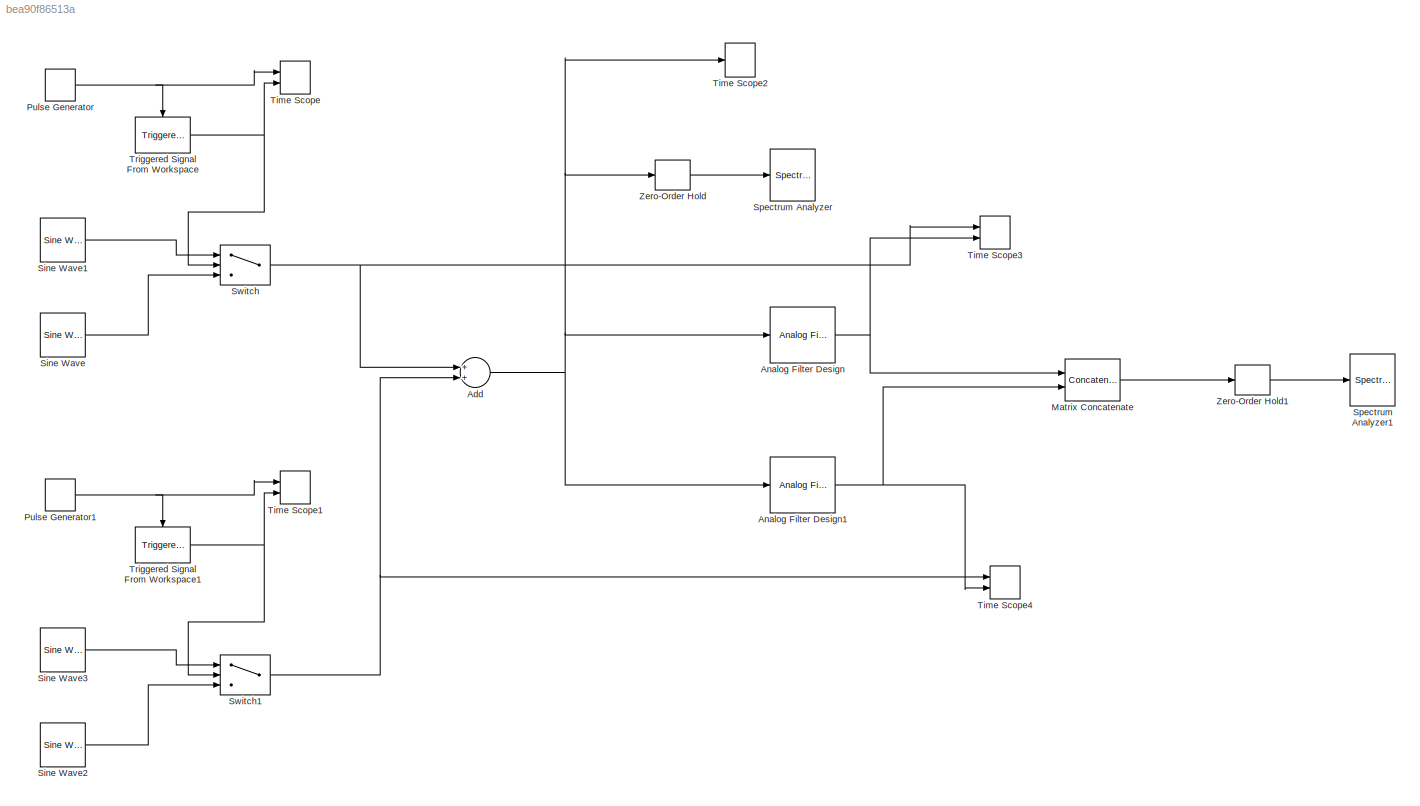
MODEL slx_bea90f86513a
KIND model
CONFIG AbsTol = auto
CONFIG FixedStep = auto
CONFIG MaxStep = auto
CONFIG MinStep = auto
CONFIG RelTol = 1e-3
CONFIG SampleTimeConstraint = Unconstrained
CONFIG Solver = ode45
CONFIG SolverMode = Auto
CONFIG SolverName = ode45
CONFIG StartTime = 0.0
CONFIG StopTime = 8
BLOCK [Sum] Add
  InputSameDT = off
  OutDataTypeStr = Inherit: Inherit via internal rule
  Ports = [2, 1]
  SaturateOnIntegerOverflow = off
BLOCK [Reference] Analog Filter Design  REF=dsparch4/Analog
Filter Design
  N = 8
  Ports = [1, 1]
  Rp = 2
  Rs = 40
  SourceBlock = dsparch4/Analog\nFilter Design
  SourceType = Analog Filter Design
  Whi = 2*pi*22
  Wlo = 2*pi*18
  filttype = Bandpass
  method = Butterworth
BLOCK [Reference] Analog Filter Design1  REF=dsparch4/Analog
Filter Design
  N = 8
  Ports = [1, 1]
  Rp = 2
  Rs = 40
  SourceBlock = dsparch4/Analog\nFilter Design
  SourceType = Analog Filter Design
  Whi = 2*pi*52
  Wlo = 2*pi*48
  filttype = Bandpass
  method = Butterworth
BLOCK [Concatenate] Matrix Concatenate
  ConcatenateDimension = 2
  Mode = Multidimensional array
  Ports = [2, 1]
BLOCK [DiscretePulseGenerator] Pulse Generator
  Amplitude = 0.5
  Period = 0.5
  Ports = [0, 1]
  PulseType = Time based
  PulseWidth = 50
BLOCK [DiscretePulseGenerator] Pulse Generator1
  Amplitude = 0.5
  Period = 0.5
  Ports = [0, 1]
  PulseType = Time based
  PulseWidth = 50
BLOCK [Reference] Sine Wave  REF=dspsrcs4/Sine Wave
  Amplitude = 0
  CompMethod = Trigonometric fcn
  Frequency = 20
  LastOutDataTypeStr = double
  OutComplex = Real
  OutDataTypeStr = double
  Phase = 0
  Ports = [0, 1]
  ResetState = Restart at time zero
  SampleMode = Discrete
  SampleTime = 0.0025
  SamplesPerFrame = 1
  SourceBlock = dspsrcs4/Sine Wave
  SourceType = Sine Wave
  TableSize = Speed
  additionalParams = off
  allowOverrides = on
  dataType = double
  fracBitsMode = Best precision
  numFracBits = 15
  udDataType = sfix(16)
  wordLen = 16
BLOCK [Reference] Sine Wave1  REF=dspsrcs4/Sine Wave
  Amplitude = 2
  CompMethod = Trigonometric fcn
  Frequency = 20
  LastOutDataTypeStr = double
  OutComplex = Real
  OutDataTypeStr = double
  Phase = 0
  Ports = [0, 1]
  ResetState = Restart at time zero
  SampleMode = Discrete
  SampleTime = 0.0025
  SamplesPerFrame = 1
  SourceBlock = dspsrcs4/Sine Wave
  SourceType = Sine Wave
  TableSize = Speed
  additionalParams = off
  allowOverrides = on
  dataType = double
  fracBitsMode = Best precision
  numFracBits = 15
  udDataType = sfix(16)
  wordLen = 16
BLOCK [Reference] Sine Wave2  REF=dspsrcs4/Sine Wave
  Amplitude = 0
  CompMethod = Trigonometric fcn
  Frequency = 50
  LastOutDataTypeStr = double
  OutComplex = Real
  OutDataTypeStr = double
  Phase = 0
  Ports = [0, 1]
  ResetState = Restart at time zero
  SampleMode = Discrete
  SampleTime = 0.0025
  SamplesPerFrame = 1
  SourceBlock = dspsrcs4/Sine Wave
  SourceType = Sine Wave
  TableSize = Speed
  additionalParams = off
  allowOverrides = on
  dataType = double
  fracBitsMode = Best precision
  numFracBits = 15
  udDataType = sfix(16)
  wordLen = 16
BLOCK [Reference] Sine Wave3  REF=dspsrcs4/Sine Wave
  Amplitude = 2
  CompMethod = Trigonometric fcn
  Frequency = 50
  LastOutDataTypeStr = double
  OutComplex = Real
  OutDataTypeStr = double
  Phase = 0
  Ports = [0, 1]
  ResetState = Restart at time zero
  SampleMode = Discrete
  SampleTime = 0.0025
  SamplesPerFrame = 1
  SourceBlock = dspsrcs4/Sine Wave
  SourceType = Sine Wave
  TableSize = Speed
  additionalParams = off
  allowOverrides = on
  dataType = double
  fracBitsMode = Best precision
  numFracBits = 15
  udDataType = sfix(16)
  wordLen = 16
BLOCK [SpectrumAnalyzer] Spectrum Analyzer
  Ports = [1]
  ScopeSpecificationString = spbscopes.SpectrumAnalyzerBlockCfg('CurrentConfiguration', extmgr.ConfigurationSet(extmgr.Configuration('Core','General UI',true),extmgr.Configuration('Core','Source UI',true),extmgr.Configuration('Sources','WiredSimulink',true),extmgr.Configuration('Visuals','Spectrum',true,'AxesProperties',struct('Color',[0 0 0],'XColor',[0.686274509803922 0.686274509803922 0.686274509803922],'YColor',[0.6862745...<+5989ch>
BLOCK [SpectrumAnalyzer] Spectrum Analyzer1
  Ports = [1]
  ScopeSpecificationString = spbscopes.SpectrumAnalyzerBlockCfg('CurrentConfiguration', extmgr.ConfigurationSet(extmgr.Configuration('Core','General UI',true),extmgr.Configuration('Core','Source UI',true),extmgr.Configuration('Sources','WiredSimulink',true),extmgr.Configuration('Visuals','Spectrum',true,'AxesProperties',struct('Color',[0 0 0],'XColor',[0.686274509803922 0.686274509803922 0.686274509803922],'YColor',[0.6862745...<+6070ch>
BLOCK [Switch] Switch
  Criteria = u2 > Threshold
  InputSameDT = off
  SaturateOnIntegerOverflow = off
BLOCK [Switch] Switch1
  Criteria = u2 > Threshold
  InputSameDT = off
  SaturateOnIntegerOverflow = off
BLOCK [TimeScope] Time Scope
  DefaultConfigurationName = spbscopes.TimeScopeBlockCfg
  NumInputPorts = 2
  Ports = [2]
  ScopeSpecificationString = spbscopes.TimeScopeBlockCfg('CurrentConfiguration', extmgr.ConfigurationSet(extmgr.Configuration('Core','General UI',true),extmgr.Configuration('Core','Source UI',true),extmgr.Configuration('Sources','WiredSimulink',true),extmgr.Configuration('Visuals','Time Domain',true,'DisplayPropertyDefaults',struct('MinYLimReal','-0.125','MaxYLimReal','1.125','YLabelReal','Amplitude','MinYLimMag','0','MaxYLim...<+1397ch>
  UserDataPersistent = on
BLOCK [TimeScope] Time Scope1
  DefaultConfigurationName = spbscopes.TimeScopeBlockCfg
  NumInputPorts = 2
  Ports = [2]
  ScopeSpecificationString = spbscopes.TimeScopeBlockCfg('CurrentConfiguration', extmgr.ConfigurationSet(extmgr.Configuration('Core','General UI',true),extmgr.Configuration('Core','Source UI',true),extmgr.Configuration('Sources','WiredSimulink',true,'DataLoggingVariableName','ScopeData1'),extmgr.Configuration('Visuals','Time Domain',true,'DisplayPropertyDefaults',struct('MinYLimReal','-0.125','MaxYLimReal','1.125','YLabelReal...<+1410ch>
  UserDataPersistent = on
BLOCK [TimeScope] Time Scope2
  DefaultConfigurationName = spbscopes.TimeScopeBlockCfg
  NumInputPorts = 1
  Ports = [1]
  ScopeSpecificationString = spbscopes.TimeScopeBlockCfg('CurrentConfiguration', extmgr.ConfigurationSet(extmgr.Configuration('Core','General UI',true),extmgr.Configuration('Core','Source UI',true),extmgr.Configuration('Sources','WiredSimulink',true,'DataLoggingVariableName','ScopeData2'),extmgr.Configuration('Visuals','Time Domain',true,'DisplayPropertyDefaults',struct('MinYLimReal','-4.87764','MaxYLimReal','4.87764','YLabel...<+1421ch>
  UserDataPersistent = on
BLOCK [TimeScope] Time Scope3
  DefaultConfigurationName = spbscopes.TimeScopeBlockCfg
  NumInputPorts = 2
  Ports = [2]
  ScopeSpecificationString = spbscopes.TimeScopeBlockCfg('CurrentConfiguration', extmgr.ConfigurationSet(extmgr.Configuration('Core','General UI',true),extmgr.Configuration('Core','Source UI',true),extmgr.Configuration('Sources','WiredSimulink',true,'DataLoggingVariableName','ScopeData3'),extmgr.Configuration('Visuals','Time Domain',true,'DisplayPropertyDefaults',struct('MinYLimReal','-1.25','MaxYLimReal','1.25','YLabelReal',...<+1456ch>
  UserDataPersistent = on
BLOCK [TimeScope] Time Scope4
  DefaultConfigurationName = spbscopes.TimeScopeBlockCfg
  NumInputPorts = 2
  Ports = [2]
  ScopeSpecificationString = spbscopes.TimeScopeBlockCfg('CurrentConfiguration', extmgr.ConfigurationSet(extmgr.Configuration('Core','General UI',true),extmgr.Configuration('Core','Source UI',true),extmgr.Configuration('Sources','WiredSimulink',true,'DataLoggingVariableName','ScopeData4'),extmgr.Configuration('Visuals','Time Domain',true,'DisplayPropertyDefaults',struct('MinYLimReal','-2.81672','MaxYLimReal','2.77209','YLabel...<+1451ch>
  UserDataPersistent = on
BLOCK [Reference] Triggered Signal From Workspace  REF=dspsigops/Triggered Signal
From Workspace
  OutputAfterFinalValue = Setting to zero
  Ports = [0, 1, 0, 1]
  SamplesPerFrame = 1
  Signal = [0 1 0 1 0 0 0 1 1 1 0 1 0 0 0 0]
  SourceBlock = dspsigops/Triggered Signal\nFrom Workspace
  SourceType = Triggered Signal From Workspace
  TriggerType = Rising edge
  ic = 0
BLOCK [Reference] Triggered Signal From Workspace1  REF=dspsigops/Triggered Signal
From Workspace
  OutputAfterFinalValue = Setting to zero
  Ports = [0, 1, 0, 1]
  SamplesPerFrame = 1
  Signal = [0 1 0 1 0 0 1 1 0 1 1 1 0 1 0 1]
  SourceBlock = dspsigops/Triggered Signal\nFrom Workspace
  SourceType = Triggered Signal From Workspace
  TriggerType = Rising edge
  ic = 0
BLOCK [ZeroOrderHold] Zero-Order Hold
  SampleTime = 0.0025
BLOCK [ZeroOrderHold] Zero-Order Hold1
  SampleTime = 0.0025
NET Add:1 -> Analog Filter Design1:1, Analog Filter Design:1, Time Scope2:1, Zero-Order Hold:1
NET Analog Filter Design1:1 -> Matrix Concatenate:2, Time Scope4:2
NET Analog Filter Design:1 -> Matrix Concatenate:1, Time Scope3:2
LINE Matrix Concatenate:1 -> Zero-Order Hold1:1
NET Pulse Generator1:1 -> Time Scope1:1, Triggered Signal From Workspace1:trigger
NET Pulse Generator:1 -> Time Scope:1, Triggered Signal From Workspace:trigger
LINE Sine Wave1:1 -> Switch:1
LINE Sine Wave2:1 -> Switch1:3
LINE Sine Wave3:1 -> Switch1:1
LINE Sine Wave:1 -> Switch:3
NET Switch1:1 -> Add:2, Time Scope4:1
NET Switch:1 -> Add:1, Time Scope3:1
NET Triggered Signal From Workspace1:1 -> Switch1:2, Time Scope1:2
NET Triggered Signal From Workspace:1 -> Switch:2, Time Scope:2
LINE Zero-Order Hold1:1 -> Spectrum Analyzer1:1
LINE Zero-Order Hold:1 -> Spectrum Analyzer:1
note: NET lines group one-source signal fan-out (src -> all destinations, sorted); 1:1 wires keep LINE
